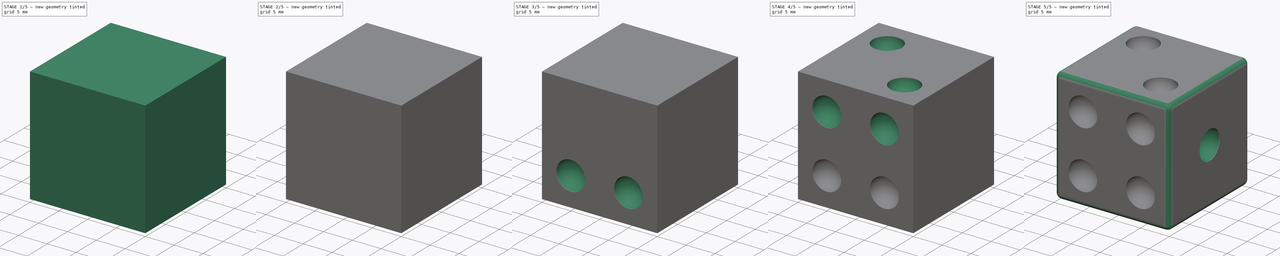
[diagram: build sequence overview — one tinted view per stage of 5, left to right]
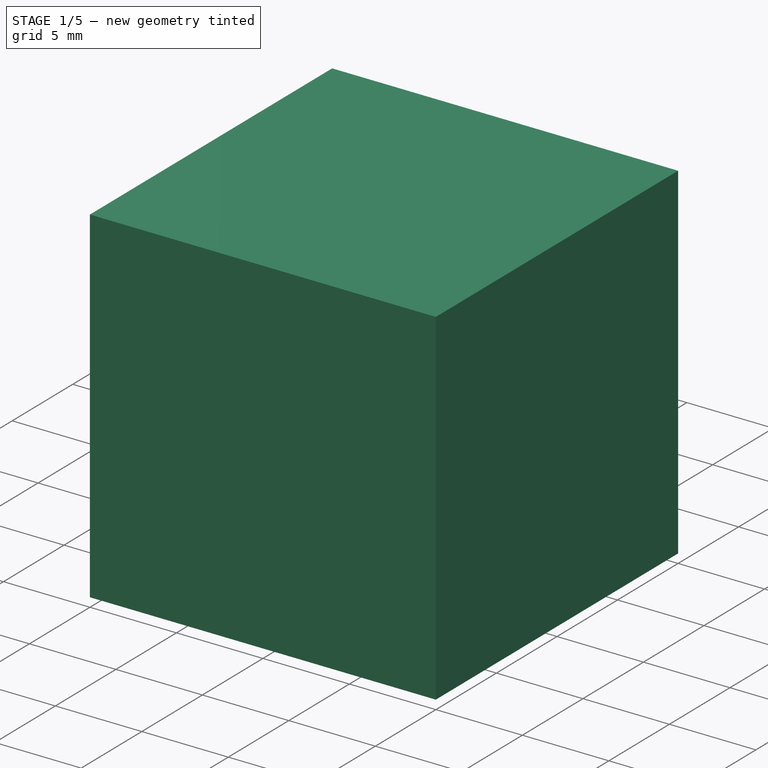
[diagram: stage 1 of 5 — iso view after this stage's code; geometry added in this stage tinted green]
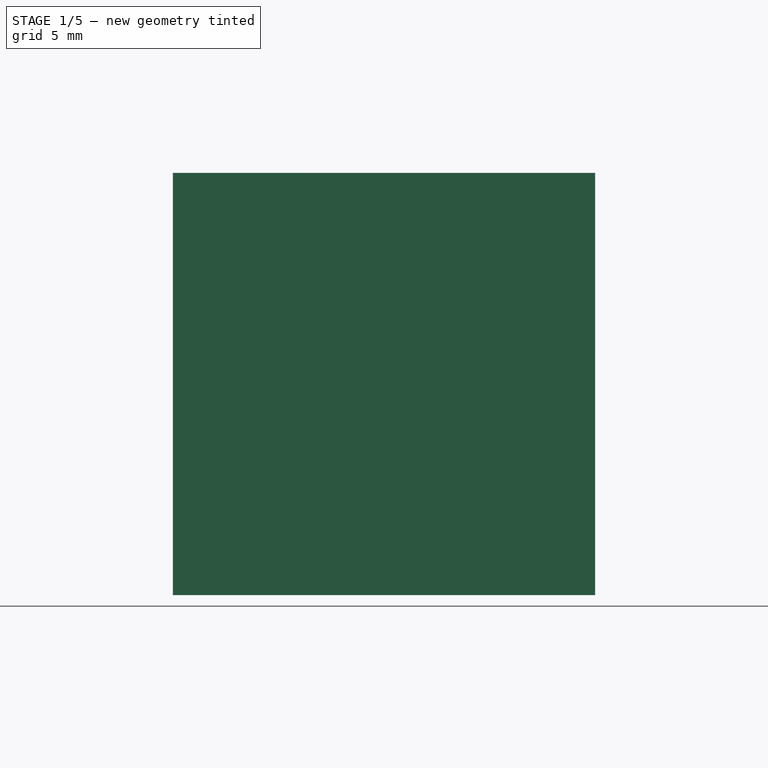
[diagram: stage 1 of 5 — front view after this stage's code; geometry added in this stage tinted green]
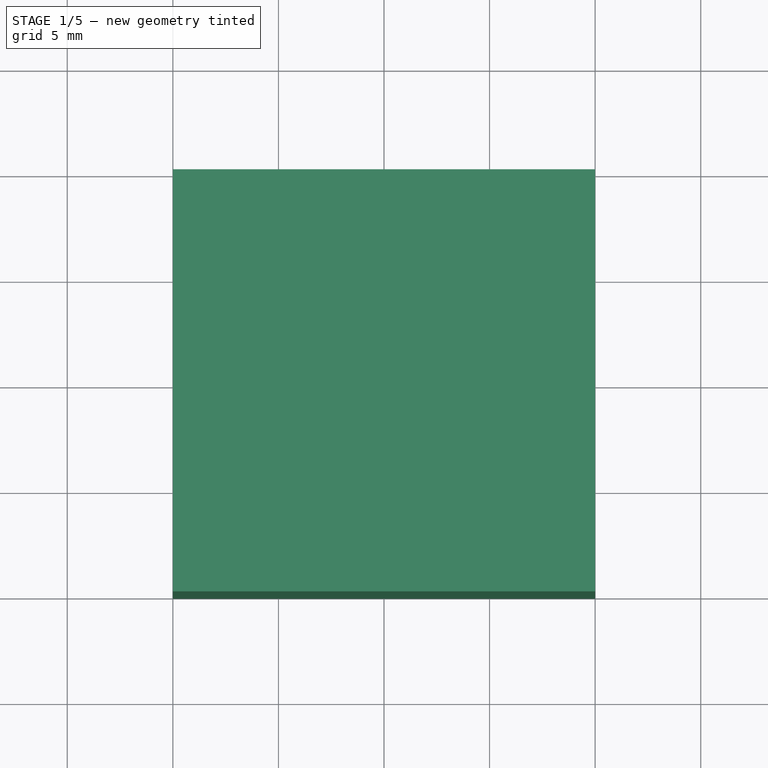
[diagram: stage 1 of 5 — top view after this stage's code; geometry added in this stage tinted green]
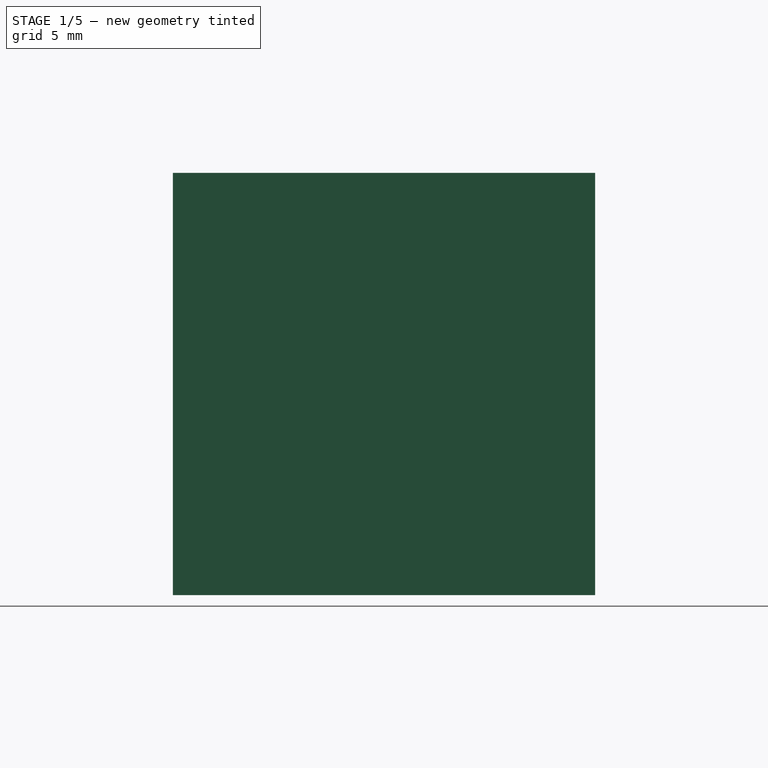
[diagram: stage 1 of 5 — right view after this stage's code; geometry added in this stage tinted green]
FCSTD DOCUMENT  (FreeCAD 0.21R33694 (Git))
Label: dice
License: All rights reserved
LicenseURL: http://en.wikipedia.org/wiki/All_rights_reserved
objects: PartDesign::SubtractiveSphere×21, App::Part×1, Sketcher::SketchObject×1, PartDesign::Pad×1, PartDesign::Fillet×1, PartDesign::Body×1
note: 48 computed .brp shape members not serialized (recipe doc carries the construction recipe); baked Part::Feature solids carry a one-line shape summary decoded from their .brp

FEATURE [App::Part] Part
  Origin = -> Origin
FEATURE [Sketcher::SketchObject] Sketch
  FullyConstrained = true
  MapMode = 5
  Support = -> [XY_Plane001]
  sketch-geometry (4):
    g0: LineSegment StartX=-10 StartY=10 StartZ=0 EndX=10 EndY=10 EndZ=0
    g1: LineSegment StartX=10 StartY=10 StartZ=0 EndX=10 EndY=-10 EndZ=0
    g2: LineSegment StartX=-10 StartY=-10 StartZ=0 EndX=10 EndY=-10 EndZ=0
    g3: LineSegment StartX=-10 StartY=10 StartZ=0 EndX=-10 EndY=-10 EndZ=0
  constraints (12):
    c: Coincident(g3,g0)
    c: Coincident(g0,g1)
    c: Coincident(g2,g3)
    c: Coincident(g1,g2)
    c: Vertical(g3)
    c: Vertical(g1)
    c: Horizontal(g0)
    c: Horizontal(g2)
    c: DistanceY(g3,g3) = 20
    c: DistanceX(g0,g0) = 20
    c: DistanceX(g-1,g1) = 10
    c: DistanceY(g2,g-1) = 10
FEATURE [PartDesign::Pad] Pad  label="cube"
  Direction = (0,0,1)
  Length = 20
  Length2 = 10
  Profile = -> Sketch
  ReferenceAxis = -> Sketch [N_Axis]
  Type = 0
FEATURE [PartDesign::SubtractiveSphere] Sphere015  label="face6_1"
  Angle1 = -90
  Angle2 = 90
  Angle3 = 360
  AttacherType = Attacher::AttachEngine3D
  AttachmentOffset = pos=(1,0,0) rot=(0,0,1;0rad)
  BaseFeature = -> Pad
  MapMode = 5
  Placement = pos=(-10,5,4) rot=(0,1,0;1.5708rad)
  Radius = 2.5
FEATURE [PartDesign::SubtractiveSphere] Sphere016  label="face6_2"
  Angle1 = -90
  Angle2 = 90
  Angle3 = 360
  AttacherType = Attacher::AttachEngine3D
  AttachmentOffset = pos=(0,10,0) rot=(0,0,1;0rad)
  BaseFeature = -> Sphere015
  MapMode = 5
  Placement = pos=(-10,-5,4) rot=(0.707107,0,0.707107;3.14159rad)
  Radius = 2.5
  Support = -> [Sphere015]
FEATURE [PartDesign::SubtractiveSphere] Sphere017  label="face6_3"
  Angle1 = -90
  Angle2 = 90
  Angle3 = 360
  AttacherType = Attacher::AttachEngine3D
  AttachmentOffset = pos=(-6,0,0) rot=(0,0,1;0rad)
  BaseFeature = -> Sphere016
  MapMode = 5
  Placement = pos=(-10,-5,10) rot=(0,1,0;1.5708rad)
  Radius = 2.5
  Support = -> [Sphere016]
FEATURE [PartDesign::SubtractiveSphere] Sphere018  label="face6_4"
  Angle1 = -90
  Angle2 = 90
  Angle3 = 360
  AttacherType = Attacher::AttachEngine3D
  AttachmentOffset = pos=(6,0,0) rot=(0,0,1;0rad)
  BaseFeature = -> Sphere017
  MapMode = 5
  Placement = pos=(-10,-5,16) rot=(0.707107,0,0.707107;3.14159rad)
  Radius = 2.5
  Support = -> [Sphere017]
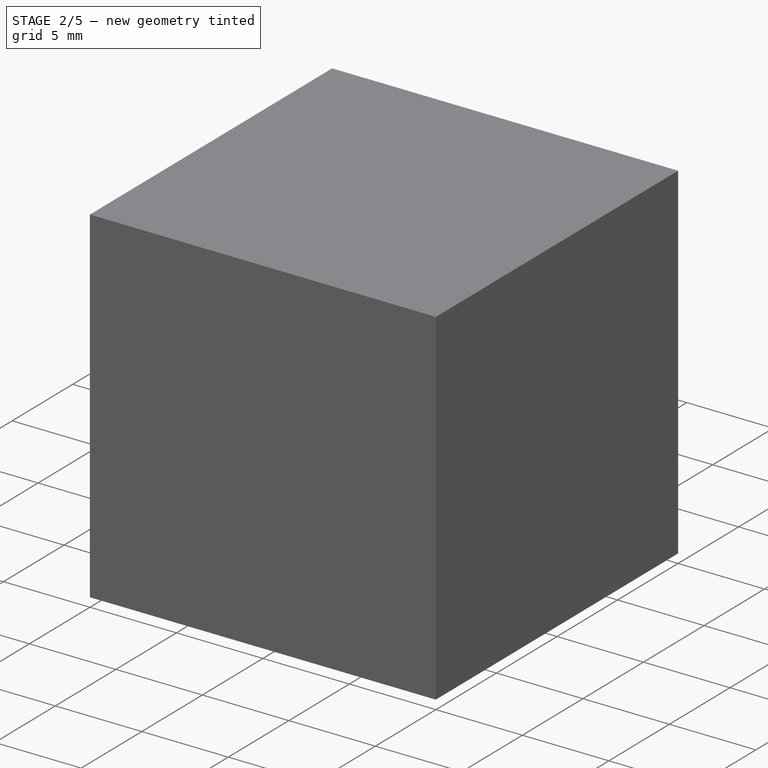
[diagram: stage 2 of 5 — iso view after this stage's code; geometry added in this stage tinted green]
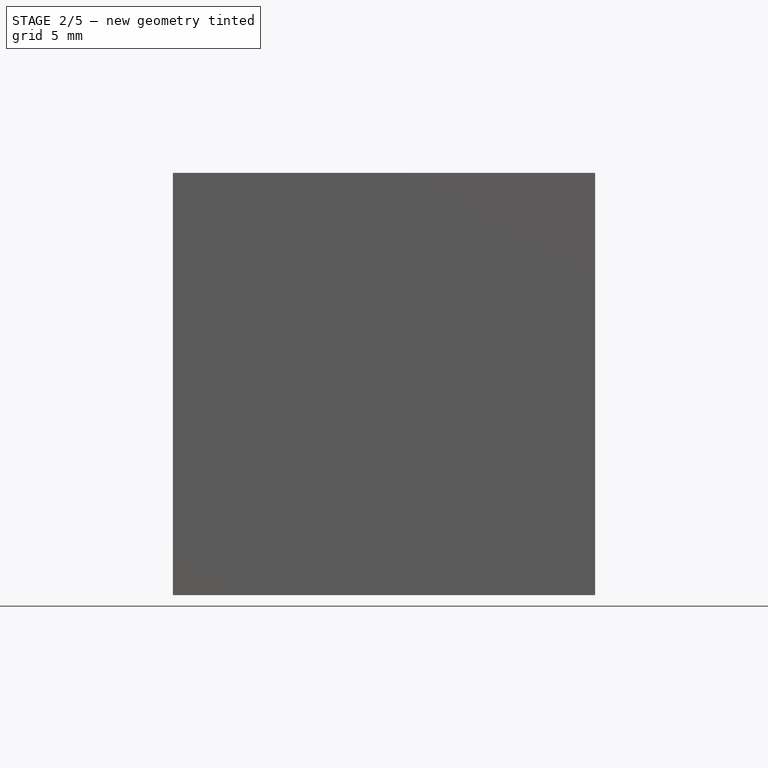
[diagram: stage 2 of 5 — front view after this stage's code; geometry added in this stage tinted green]
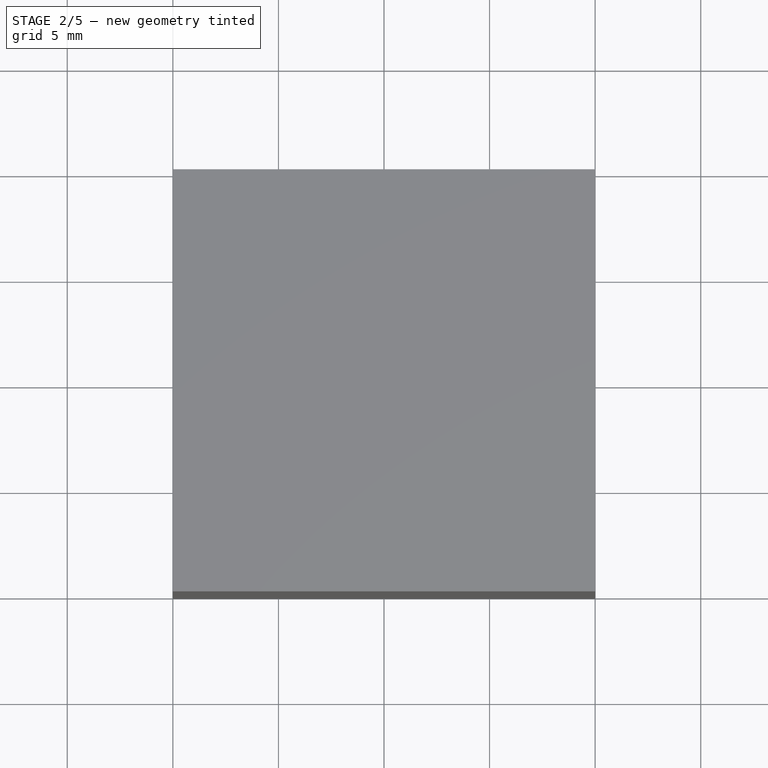
[diagram: stage 2 of 5 — top view after this stage's code; geometry added in this stage tinted green]
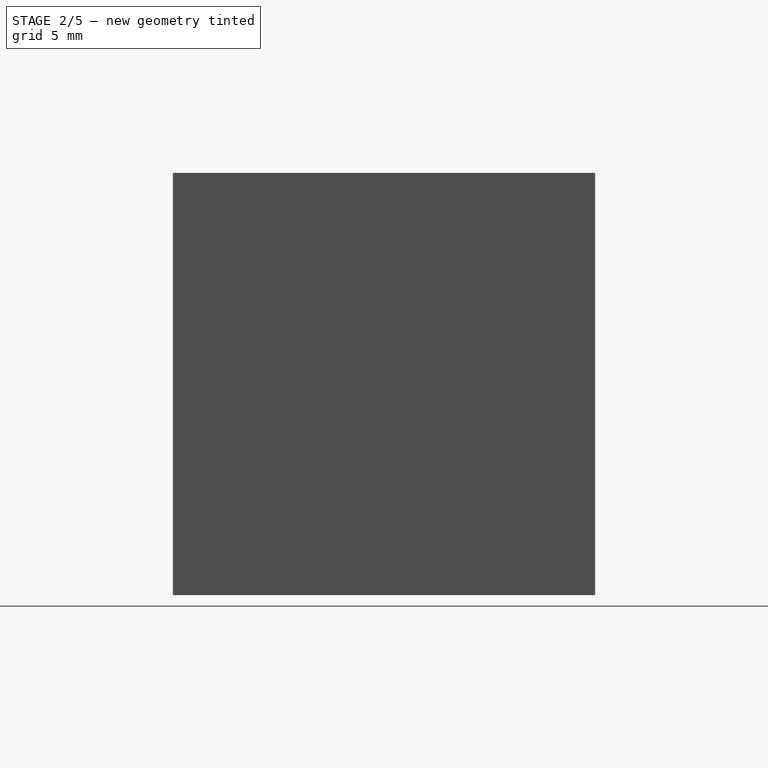
[diagram: stage 2 of 5 — right view after this stage's code; geometry added in this stage tinted green]
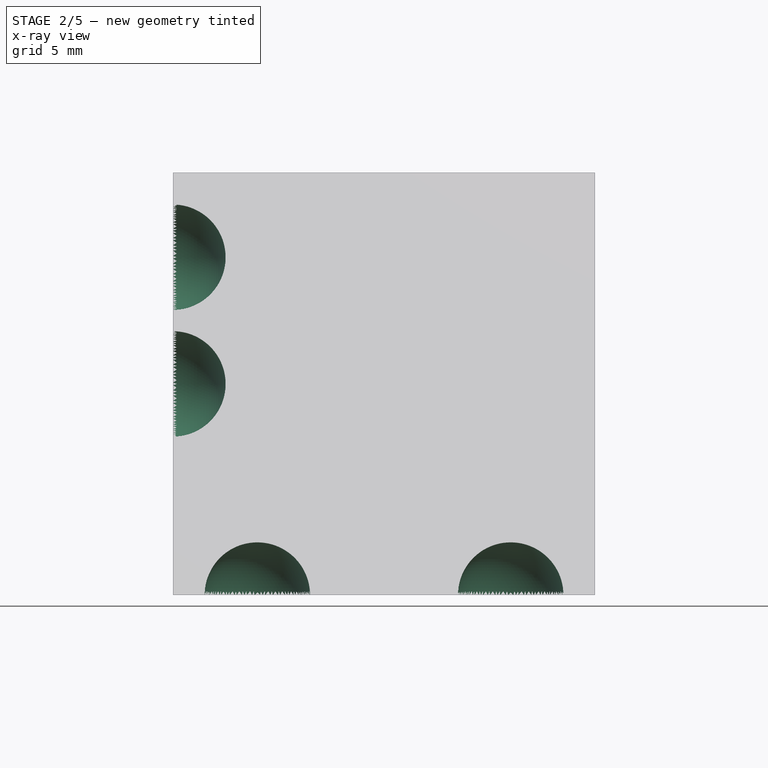
[diagram: stage 2 of 5 — x-ray composite at the front view; earlier geometry ghosted, this stage's added geometry solid]
FEATURE [PartDesign::SubtractiveSphere] Sphere019  label="face6_5"
  Angle1 = -90
  Angle2 = 90
  Angle3 = 360
  AttacherType = Attacher::AttachEngine3D
  AttachmentOffset = pos=(0,10,0) rot=(0,0,1;0rad)
  BaseFeature = -> Sphere018
  MapMode = 5
  Placement = pos=(-10,5,16) rot=(0,1,0;1.5708rad)
  Radius = 2.5
  Support = -> [Sphere018]
FEATURE [PartDesign::SubtractiveSphere] Sphere020  label="face6_6"
  Angle1 = -90
  Angle2 = 90
  Angle3 = 360
  AttacherType = Attacher::AttachEngine3D
  AttachmentOffset = pos=(-6,0,0) rot=(0,0,1;0rad)
  BaseFeature = -> Sphere019
  MapMode = 5
  Placement = pos=(-10,5,10) rot=(0.707107,0,0.707107;3.14159rad)
  Radius = 2.5
  Support = -> [Sphere019]
FEATURE [PartDesign::SubtractiveSphere] Sphere  label="face5_1"
  Angle1 = -90
  Angle2 = 90
  Angle3 = 360
  AttacherType = Attacher::AttachEngine3D
  AttachmentOffset = pos=(1,4,0) rot=(0,0,1;0rad)
  BaseFeature = -> Sphere020
  MapMode = 5
  Placement = pos=(-6,6,-7.8e-15) rot=(0.707107,0.707107,0;3.14159rad)
  Radius = 2.5
  Support = -> [Sphere020]
FEATURE [PartDesign::SubtractiveSphere] Sphere021  label="face5_2"
  Angle1 = -90
  Angle2 = 90
  Angle3 = 360
  AttacherType = Attacher::AttachEngine3D
  AttachmentOffset = pos=(0,12,0) rot=(0,0,1;0rad)
  BaseFeature = -> Sphere
  MapMode = 5
  Placement = pos=(6,6,2.5e-15) rot=(0.707107,0.707107,0;3.14159rad)
  Radius = 2.5
  Support = -> [Sphere]
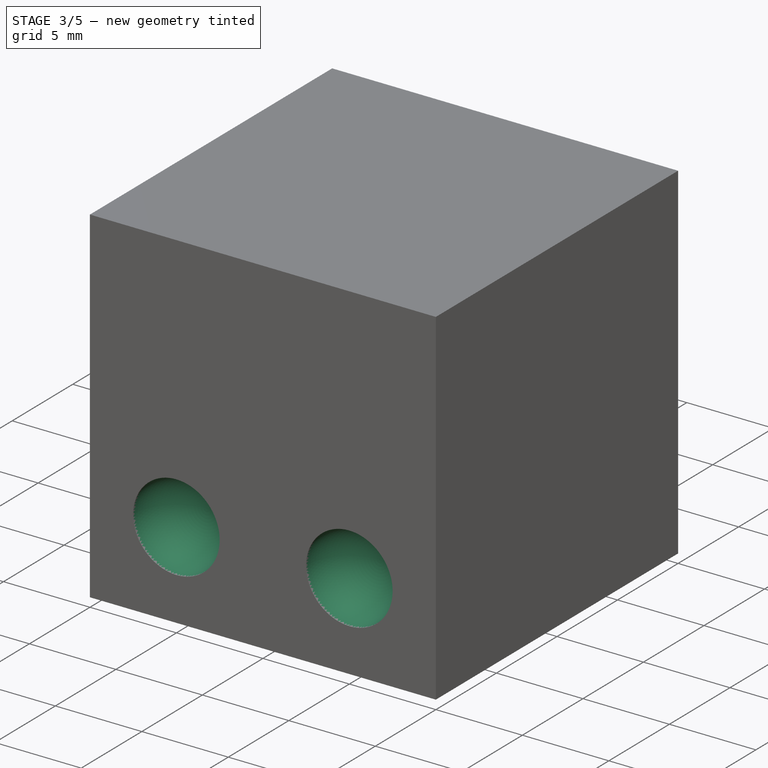
[diagram: stage 3 of 5 — iso view after this stage's code; geometry added in this stage tinted green]
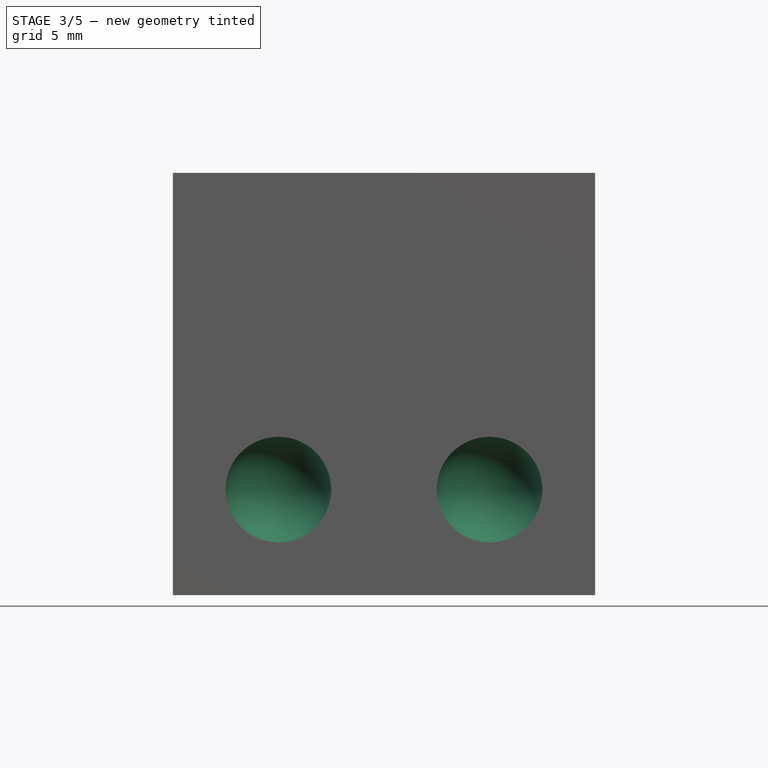
[diagram: stage 3 of 5 — front view after this stage's code; geometry added in this stage tinted green]
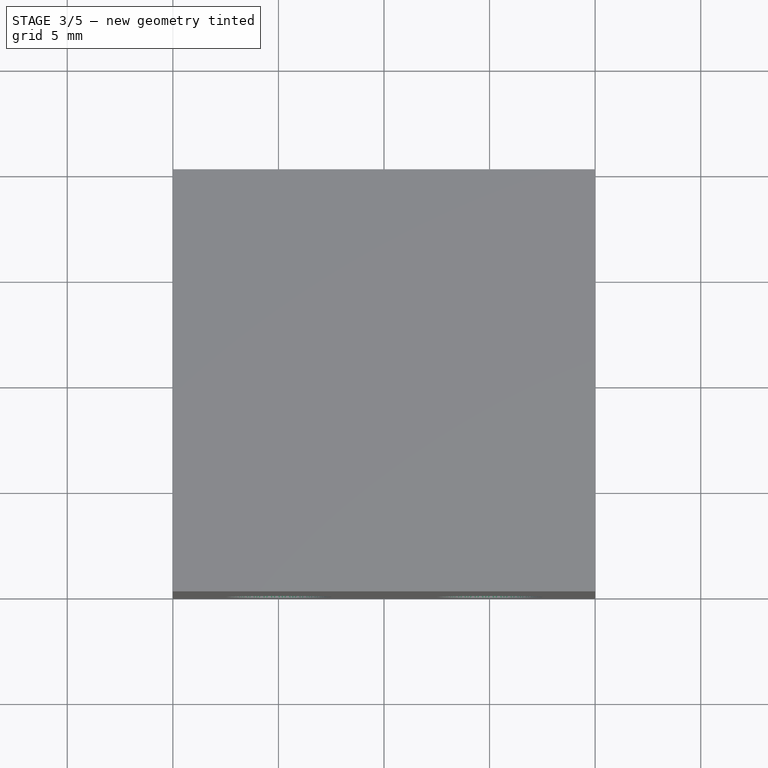
[diagram: stage 3 of 5 — top view after this stage's code; geometry added in this stage tinted green]
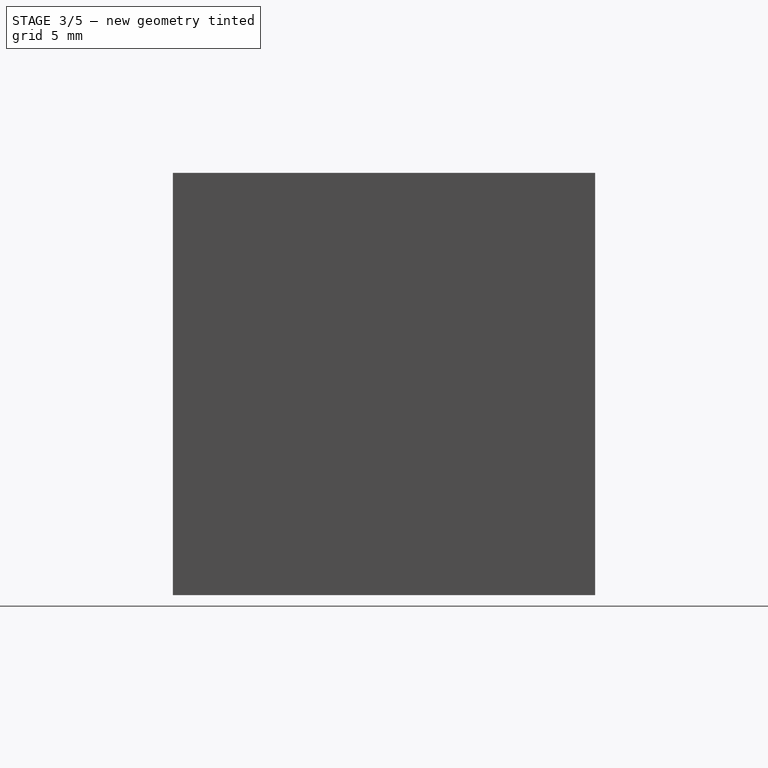
[diagram: stage 3 of 5 — right view after this stage's code; geometry added in this stage tinted green]
FEATURE [PartDesign::SubtractiveSphere] Sphere022  label="face5_3"
  Angle1 = -90
  Angle2 = 90
  Angle3 = 360
  AttacherType = Attacher::AttachEngine3D
  BaseFeature = -> Sphere021
  Radius = 2.5
FEATURE [PartDesign::SubtractiveSphere] Sphere023  label="face5_4"
  Angle1 = -90
  Angle2 = 90
  Angle3 = 360
  AttacherType = Attacher::AttachEngine3D
  AttachmentOffset = pos=(-6,6,0) rot=(0,0,1;0rad)
  BaseFeature = -> Sphere022
  MapMode = 5
  Placement = pos=(-6,-6,-1.34e-14) rot=(1,0,0;3.14159rad)
  Radius = 2.5
  Support = -> [Sphere022]
FEATURE [PartDesign::SubtractiveSphere] Sphere024  label="face5_5"
  Angle1 = -90
  Angle2 = 90
  Angle3 = 360
  AttacherType = Attacher::AttachEngine3D
  AttachmentOffset = pos=(12,0,0) rot=(0,0,1;0rad)
  BaseFeature = -> Sphere023
  MapMode = 5
  Placement = pos=(6,-6,2e-16) rot=(1,0,0;3.14159rad)
  Radius = 2.5
  Support = -> [Sphere023]
FEATURE [PartDesign::SubtractiveSphere] Sphere025  label="face4_1"
  Angle1 = -90
  Angle2 = 90
  Angle3 = 360
  AttacherType = Attacher::AttachEngine3D
  AttachmentOffset = pos=(1,-5,0) rot=(0,0,1;0rad)
  BaseFeature = -> Sphere024
  MapMode = 5
  Placement = pos=(5,-10,5) rot=(0,0.707107,-0.707107;3.14159rad)
  Radius = 2.5
  Support = -> [Sphere024]
FEATURE [PartDesign::SubtractiveSphere] Sphere026  label="face4_2"
  Angle1 = -90
  Angle2 = 90
  Angle3 = 360
  AttacherType = Attacher::AttachEngine3D
  AttachmentOffset = pos=(10,0,0) rot=(0,0,1;0rad)
  BaseFeature = -> Sphere025
  MapMode = 5
  Placement = pos=(-5,-10,5) rot=(0,0.707107,-0.707107;3.14159rad)
  Radius = 2.5
  Support = -> [Sphere025]
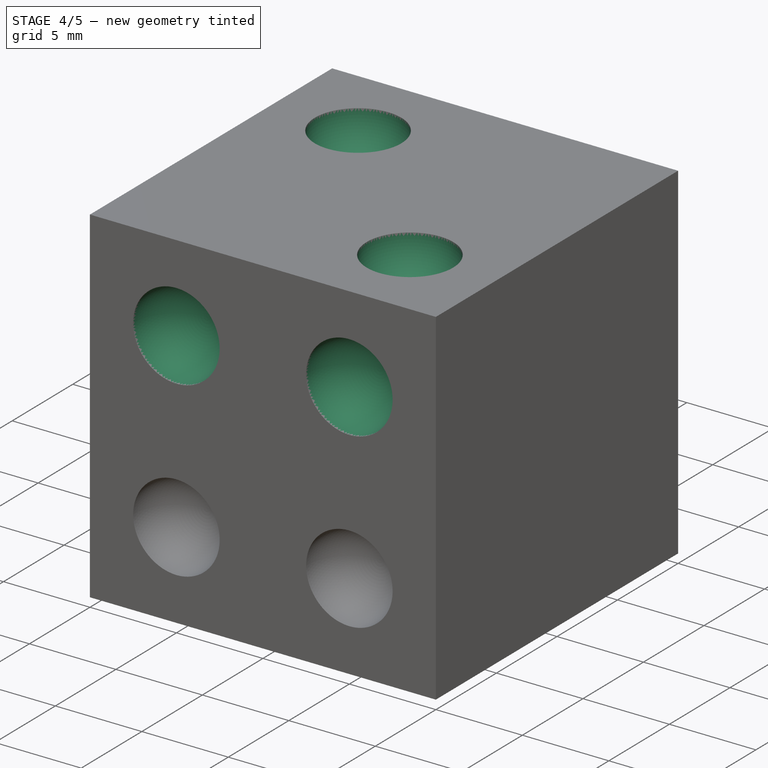
[diagram: stage 4 of 5 — iso view after this stage's code; geometry added in this stage tinted green]
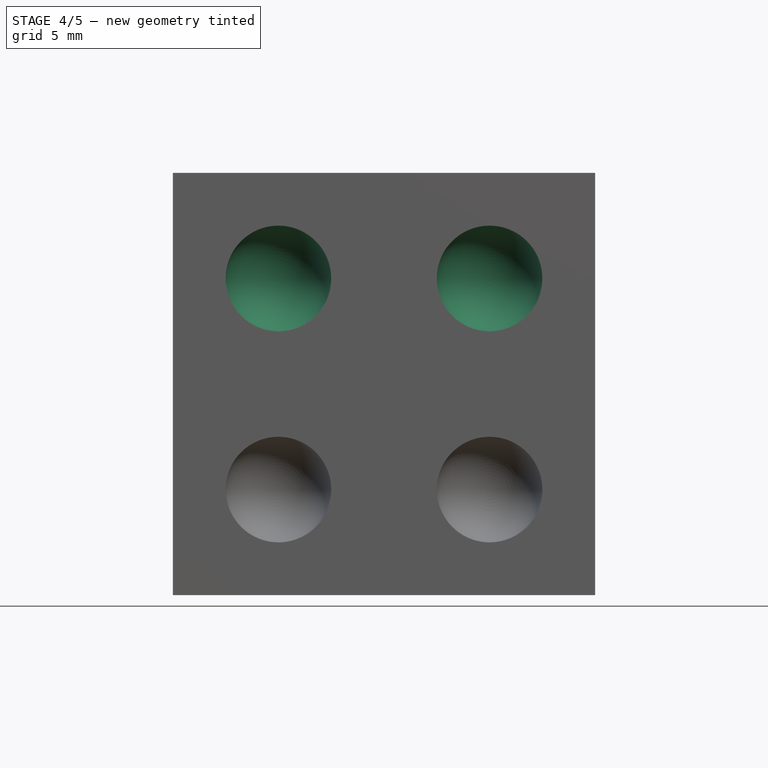
[diagram: stage 4 of 5 — front view after this stage's code; geometry added in this stage tinted green]
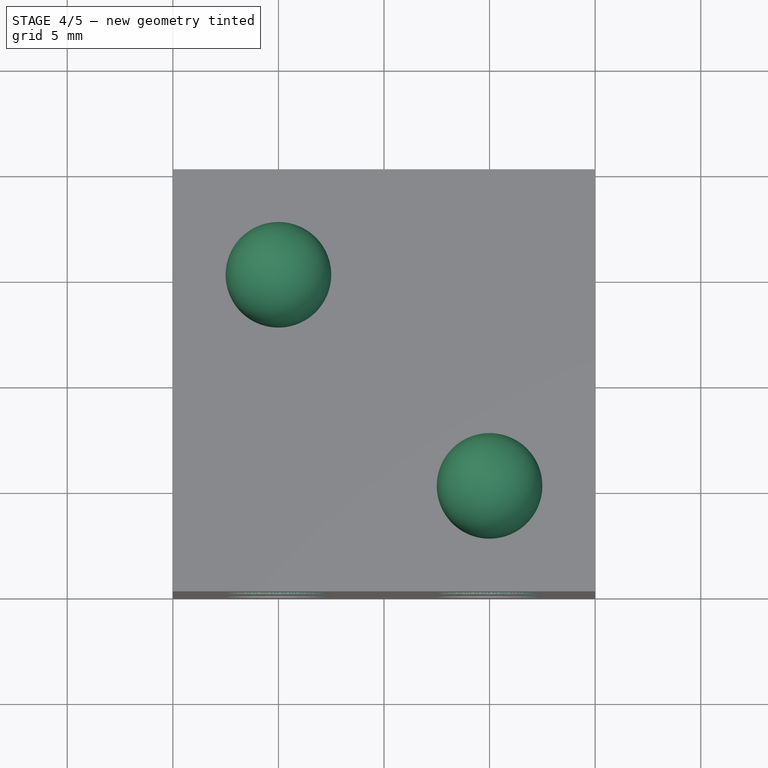
[diagram: stage 4 of 5 — top view after this stage's code; geometry added in this stage tinted green]
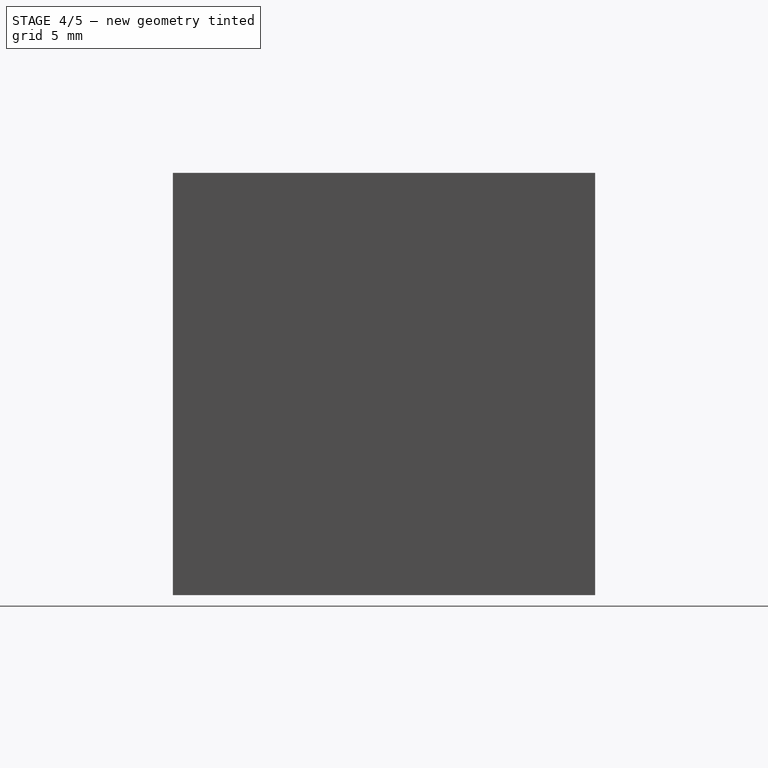
[diagram: stage 4 of 5 — right view after this stage's code; geometry added in this stage tinted green]
FEATURE [PartDesign::SubtractiveSphere] Sphere027  label="face4_3"
  Angle1 = -90
  Angle2 = 90
  Angle3 = 360
  AttacherType = Attacher::AttachEngine3D
  AttachmentOffset = pos=(0,-10,0) rot=(0,0,1;0rad)
  BaseFeature = -> Sphere026
  MapMode = 5
  Placement = pos=(-5,-10,15) rot=(0,0.707107,-0.707107;3.14159rad)
  Radius = 2.5
  Support = -> [Sphere026]
FEATURE [PartDesign::SubtractiveSphere] Sphere028  label="face4_4"
  Angle1 = -90
  Angle2 = 90
  Angle3 = 360
  AttacherType = Attacher::AttachEngine3D
  AttachmentOffset = pos=(-10,0,0) rot=(0,0,1;0rad)
  BaseFeature = -> Sphere027
  MapMode = 5
  Placement = pos=(5,-10,15) rot=(0,-0.707107,0.707107;3.14159rad)
  Radius = 2.5
  Support = -> [Sphere027]
FEATURE [PartDesign::SubtractiveSphere] Sphere029  label="face2_1"
  Angle1 = -90
  Angle2 = 90
  Angle3 = 360
  AttacherType = Attacher::AttachEngine3D
  AttachmentOffset = pos=(0,-5,0) rot=(0,0,1;0rad)
  BaseFeature = -> Sphere028
  MapMode = 5
  Placement = pos=(5,-5,20) rot=(0,0,1;3.14159rad)
  Radius = 2.5
  Support = -> [Sphere028]
FEATURE [PartDesign::SubtractiveSphere] Sphere030  label="face2_2"
  Angle1 = -90
  Angle2 = 90
  Angle3 = 360
  AttacherType = Attacher::AttachEngine3D
  AttachmentOffset = pos=(10,-10,0) rot=(0,0,1;0rad)
  BaseFeature = -> Sphere029
  MapMode = 5
  Placement = pos=(-5,5,20) rot=(0,0,1;3.14159rad)
  Radius = 2.5
  Support = -> [Sphere029]
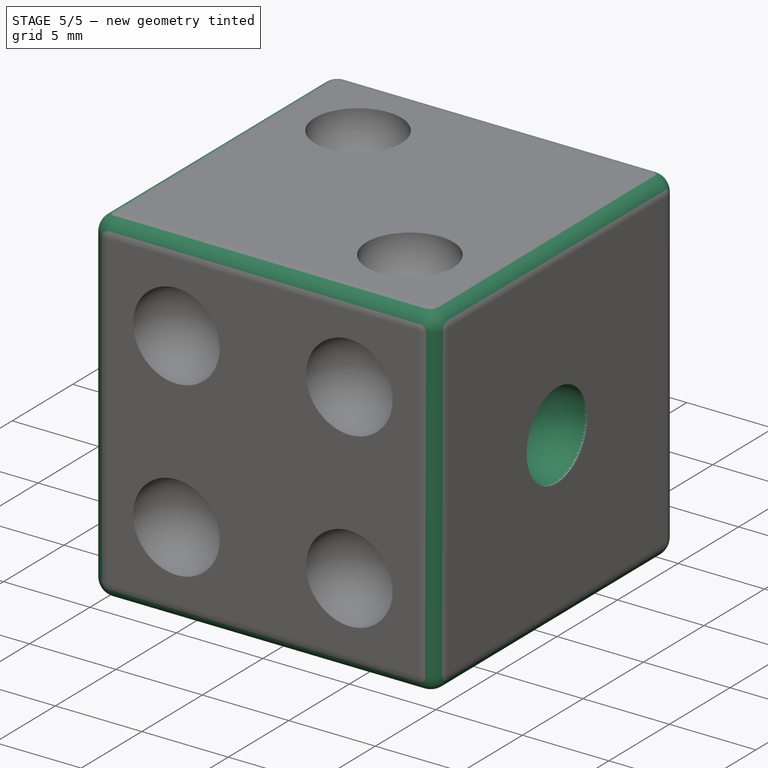
[diagram: stage 5 of 5 — iso view after this stage's code; geometry added in this stage tinted green]
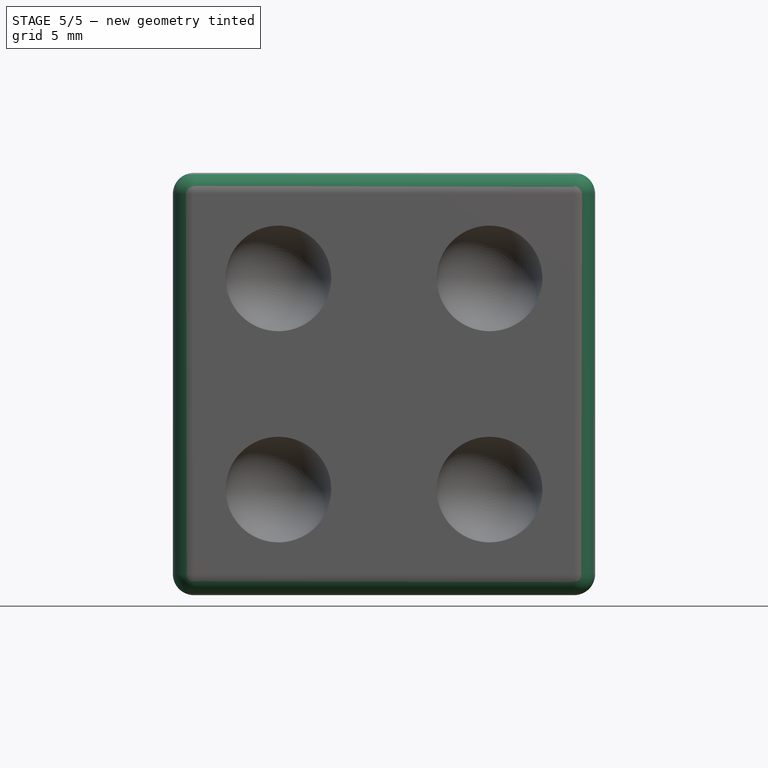
[diagram: stage 5 of 5 — front view after this stage's code; geometry added in this stage tinted green]
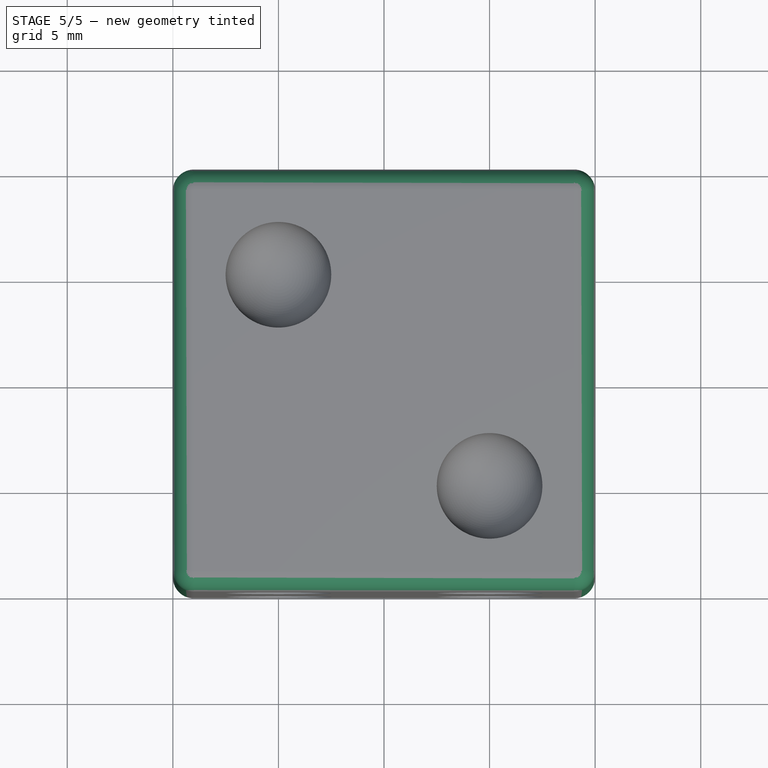
[diagram: stage 5 of 5 — top view after this stage's code; geometry added in this stage tinted green]
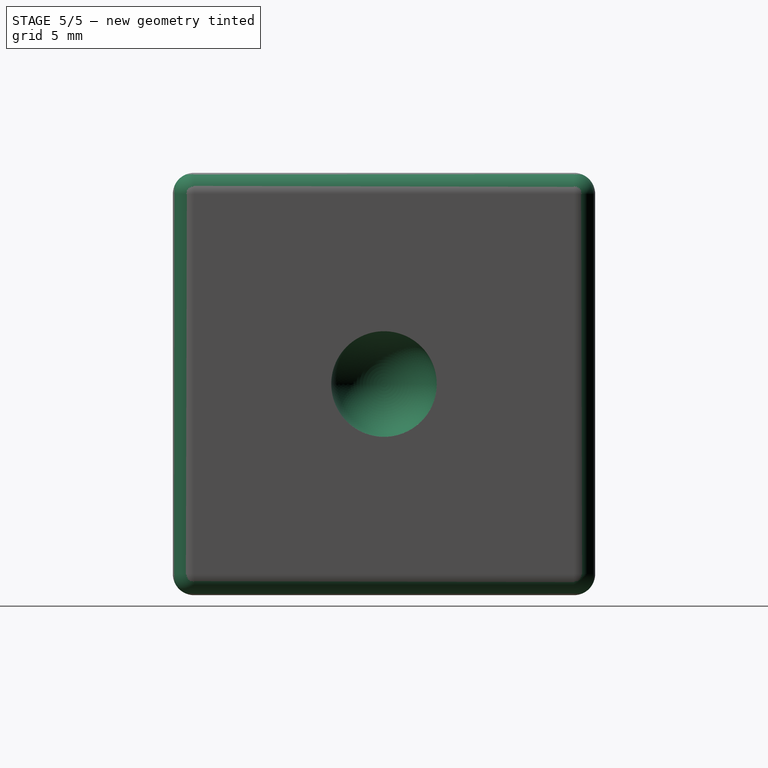
[diagram: stage 5 of 5 — right view after this stage's code; geometry added in this stage tinted green]
FEATURE [PartDesign::SubtractiveSphere] Sphere031  label="face3_1"
  Angle1 = -90
  Angle2 = 90
  Angle3 = 360
  AttacherType = Attacher::AttachEngine3D
  AttachmentOffset = pos=(1,-4,0) rot=(0,0,1;0rad)
  BaseFeature = -> Sphere030
  MapMode = 5
  Placement = pos=(-6,10,16) rot=(0,0.707107,0.707107;3.14159rad)
  Radius = 2.5
  Support = -> [Sphere030]
FEATURE [PartDesign::SubtractiveSphere] Sphere032  label="face3_2"
  Angle1 = -90
  Angle2 = 90
  Angle3 = 360
  AttacherType = Attacher::AttachEngine3D
  AttachmentOffset = pos=(-6,-6,0) rot=(0,0,1;0rad)
  BaseFeature = -> Sphere031
  MapMode = 5
  Placement = pos=(-5.68e-14,10,10) rot=(0,0.707107,0.707107;3.14159rad)
  Radius = 2.5
  Support = -> [Sphere031]
FEATURE [PartDesign::SubtractiveSphere] Sphere033  label="face3_3"
  Angle1 = -90
  Angle2 = 90
  Angle3 = 360
  AttacherType = Attacher::AttachEngine3D
  AttachmentOffset = pos=(-6,-6,0) rot=(0,0,1;0rad)
  BaseFeature = -> Sphere032
  MapMode = 5
  Placement = pos=(6,10,4) rot=(0,0.707107,0.707107;3.14159rad)
  Radius = 2.5
  Support = -> [Sphere032]
FEATURE [PartDesign::SubtractiveSphere] Sphere034
  Angle1 = -90
  Angle2 = 90
  Angle3 = 360
  AttacherType = Attacher::AttachEngine3D
  AttachmentOffset = pos=(-6,-10,0) rot=(0,0,1;0rad)
  BaseFeature = -> Sphere033
  MapMode = 5
  Placement = pos=(10,5.51e-14,10) rot=(0,1,0;1.5708rad)
  Radius = 2.5
  Support = -> [Sphere033]
FEATURE [PartDesign::Fillet] Fillet
  Base = -> Sphere034 [Edge24,Edge28,Edge9,Edge25,Edge3,Edge4,Edge1,Edge10,Edge18,Edge17,Edge2,Edge8]
  BaseFeature = -> Sphere034
  Placement = pos=(10,5.51e-14,10) rot=(0,1,0;1.5708rad)
  Radius = 1
  SupportTransform = false
  UseAllEdges = false
FEATURE [PartDesign::Body] Body
  Group = -> [Sketch,Pad,Sphere015,Sphere016,Sphere017,Sphere018,Sphere019,Sphere020,Sphere,Sphere021,Sphere022,Sphere023,Sphere024,Sphere025,Sphere026,Sphere027,Sphere028,Sphere029,Sphere030,Sphere031,Sphere032,Sphere033,Sphere034,Fillet]
  Origin = -> Origin001
  Tip = -> Fillet
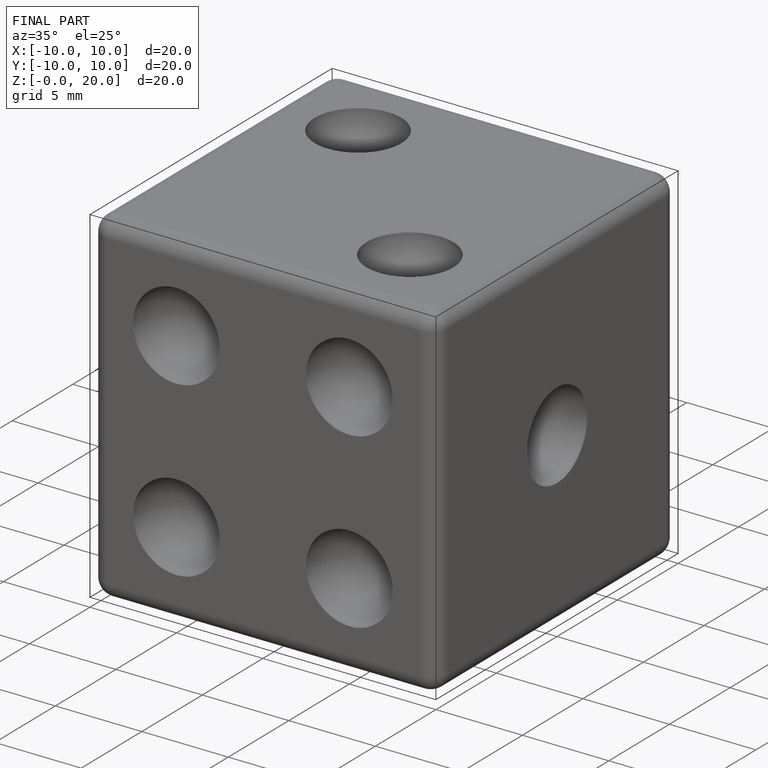
[diagram: finished part — iso view with bounding-box wireframe]
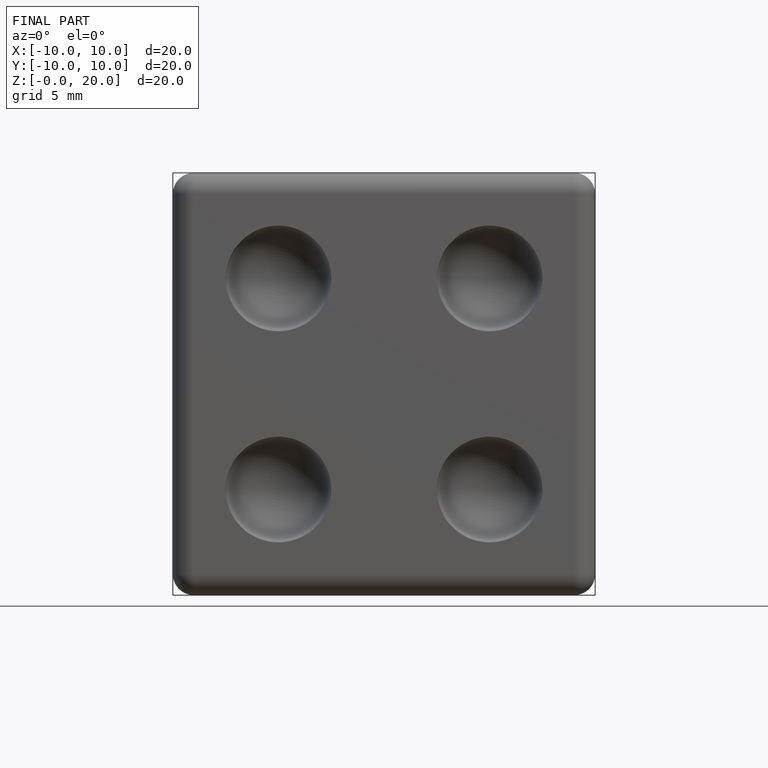
[diagram: finished part — front view with bounding-box wireframe]
